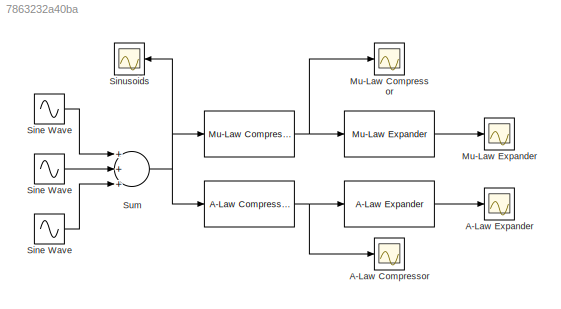
MODEL slx_7863232a40ba
KIND model
BLOCK [Reference]    REF=commsrccod2/Mu-Law
Compressor
  Ports = [1, 1]
  SourceBlock = commsrccod2/Mu-Law\nCompressor
  SourceType = Mu-Law Compressor
  V = 1.5
  mu = 255
BLOCK [Reference]     REF=commsrccod2/Mu-Law
Expander
  Ports = [1, 1]
  SourceBlock = commsrccod2/Mu-Law\nExpander
  SourceType = Mu-Law Expander
  V = 1.5
  mu = 255
BLOCK [Reference]      REF=commsrccod2/A-Law
Compressor
  A = 87.6
  Ports = [1, 1]
  SourceBlock = commsrccod2/A-Law\nCompressor
  SourceType = A-Law Compressor
  V = 1.5
BLOCK [Reference]       REF=commsrccod2/A-Law
Expander
  A = 87.6
  Ports = [1, 1]
  SourceBlock = commsrccod2/A-Law\nExpander
  SourceType = A-Law Expander
  V = 1.5
BLOCK [Sin]  Sine Wave 
  Amplitude = 0.2
  Frequency = 5000*pi
  Ports = [0, 1]
  SampleTime = 1.25e-6
BLOCK [Scope] A-Law Compressor
  DataFormat = StructureWithTime
  Floating = off
  NumInputPorts = 1
  Ports = [1]
  SampleTime = 0
  SaveName = ScopeData3
  ShowLegends = off
BLOCK [Scope] A-Law Expander
  DataFormat = StructureWithTime
  Floating = off
  NumInputPorts = 1
  Ports = [1]
  SampleTime = 0
  SaveName = ScopeData4
  ShowLegends = off
BLOCK [Scope] Mu-Law Compressor
  DataFormat = StructureWithTime
  Floating = off
  NumInputPorts = 1
  Ports = [1]
  SampleTime = 0
  SaveName = ScopeData1
  ShowLegends = off
BLOCK [Scope] Mu-Law Expander
  DataFormat = StructureWithTime
  Floating = off
  NumInputPorts = 1
  Ports = [1]
  SampleTime = 0
  SaveName = ScopeData2
  ShowLegends = off
BLOCK [Sin] Sine Wave
  Frequency = 1000*pi
  Ports = [0, 1]
  SampleTime = 1.25e-6
BLOCK [Sin] Sine Wave 
  Amplitude = 0.5
  Frequency = 3000*pi
  Ports = [0, 1]
  SampleTime = 1.25e-6
BLOCK [Scope] Sinusoids
  DataFormat = StructureWithTime
  Floating = off
  NumInputPorts = 1
  Ports = [1]
  SampleTime = 0
  SaveName = ScopeData5
  ShowLegends = off
  YMax = 1.5
  YMin = -1.5
BLOCK [Sum] Sum
  InputSameDT = off
  Inputs = +++
  OutDataTypeStr = Inherit: Inherit via internal rule
  Ports = [3, 1]
  SaturateOnIntegerOverflow = off
LINE     :1 -> A-Law Expander:1
NET    :1 ->     :1, A-Law Compressor:1
LINE   :1 -> Mu-Law Expander:1
NET  :1 ->   :1, Mu-Law Compressor:1
LINE  Sine Wave :1 -> Sum:3
LINE Sine Wave :1 -> Sum:2
LINE Sine Wave:1 -> Sum:1
NET Sum:1 ->    :1,  :1, Sinusoids:1
note: NET lines group one-source signal fan-out (src -> all destinations, sorted); 1:1 wires keep LINE
